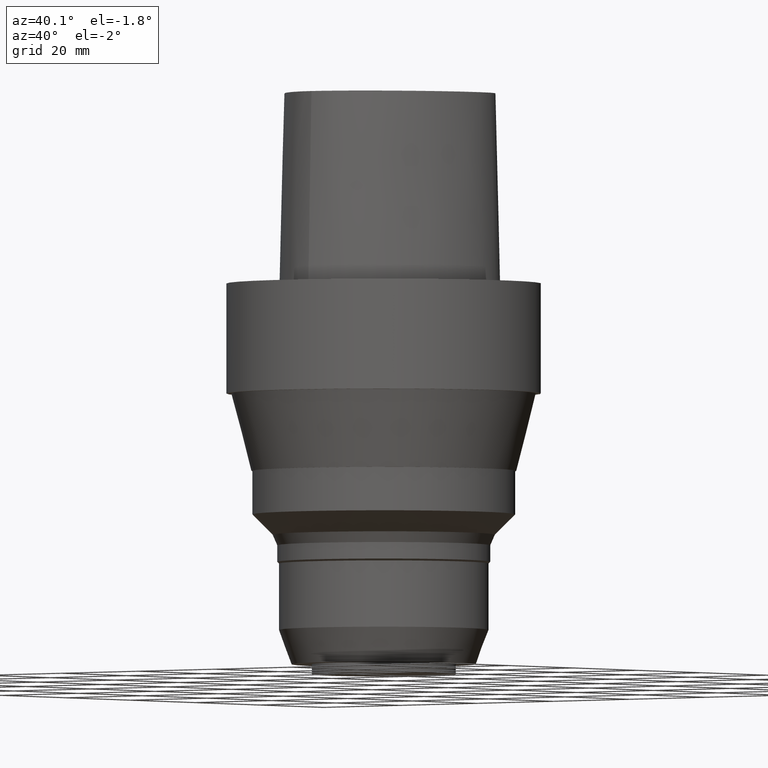
[diagram: clean part render]
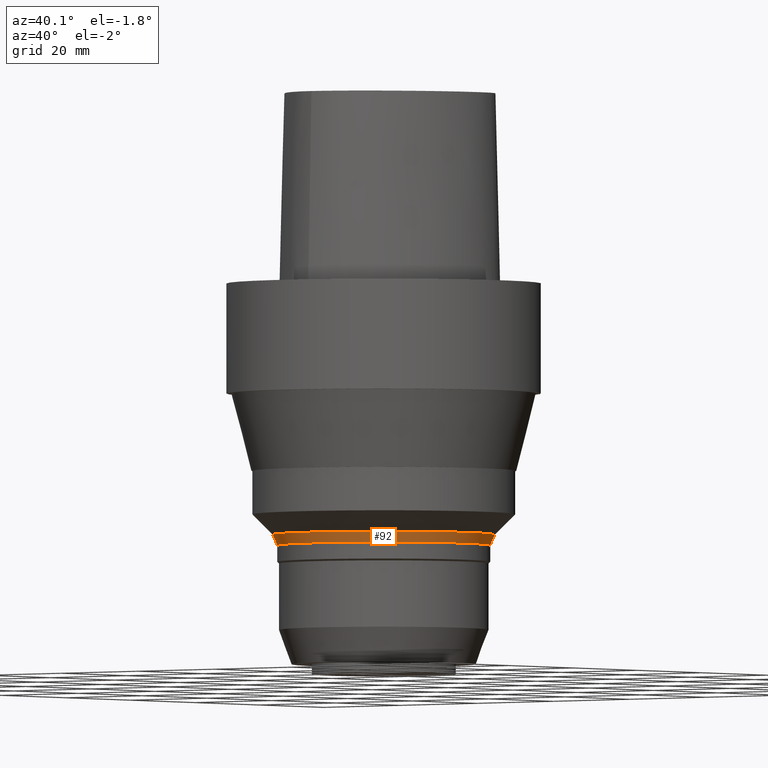
[diagram: same view with one face highlighted and labeled with its STEP entity id]
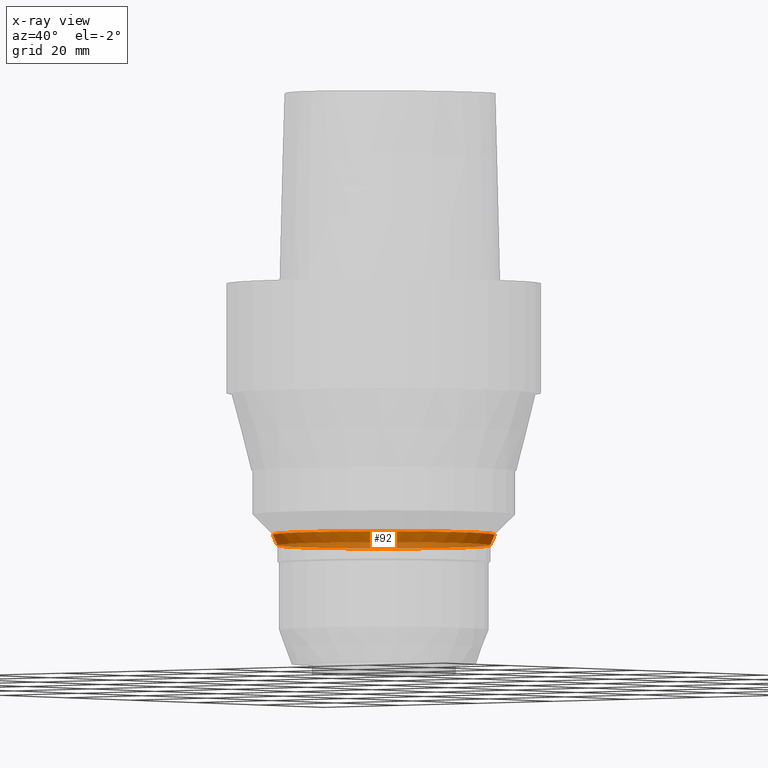
[diagram: x-ray of the same camera — body ghosted, the highlighted face saturated]
A machine part, auxiliary view. The second image highlights one B-rep face of the part: STEP entity #92.
The next image is the same camera in x-ray: the body ghosted, the highlighted face saturated — about 31% of this face is hidden behind the body in this view.
In plain terms, the highlighted conical surface has half-angle 22.5 deg.
Its self-contained STEP definition (entity closure, byte-faithful):
#66=EDGE_CURVE('Unnamed[1]',#186,#186,#187,.T.);
#92=ADVANCED_FACE('Unnamed[1]',(#226,#227),#228,.T.);
#135=EDGE_CURVE('Unnamed[1]',#294,#294,#295,.T.);
#186=VERTEX_POINT('',#349);
#187=CIRCLE('',#350,22.2286796564404);
#226=FACE_BOUND('',#503,.T.);
#227=FACE_BOUND('',#504,.T.);
#228=CONICAL_SURFACE('',#505,21.7893398282202,0.392699081698718);
#294=VERTEX_POINT('',#654);
#295=CIRCLE('',#655,21.35);
#349=CARTESIAN_POINT('',(3.07823057738177E-015,22.2286796564404,-50.2713203435464));
#350=AXIS2_PLACEMENT_3D('',#749,#750,#751);
#503=EDGE_LOOP('',(#783));
#504=EDGE_LOOP('',(#784));
#505=AXIS2_PLACEMENT_3D('',#785,#786,#787);
#654=CARTESIAN_POINT('',(3.2081239858171E-015,21.35,-52.3926406871062));
#655=AXIS2_PLACEMENT_3D('',#868,#869,#870);
#749=CARTESIAN_POINT('',(3.07823057738177E-015,6.15646115476354E-015,-50.2713203435464));
#750=DIRECTION('',(6.12323399573677E-017,1.22464679914735E-016,-1.0));
#751=DIRECTION('',(-1.23259516440783E-032,1.0,1.22464679914735E-016));
#783=ORIENTED_EDGE('',*,*,#135,.F.);
#784=ORIENTED_EDGE('',*,*,#66,.T.);
#785=CARTESIAN_POINT('',(3.14317728159943E-015,6.28635456319886E-015,-51.3319805153263));
#786=DIRECTION('',(-6.12323399573677E-017,-1.22464679914735E-016,1.0));
#787=DIRECTION('',(-1.23259516440783E-032,1.0,1.22464679914735E-016));
#868=CARTESIAN_POINT('',(3.2081239858171E-015,6.41624797163419E-015,-52.3926406871062));
#869=DIRECTION('',(6.12323399573677E-017,1.22464679914735E-016,-1.0));
#870=DIRECTION('',(-1.23259516440783E-032,1.0,1.22464679914735E-016));